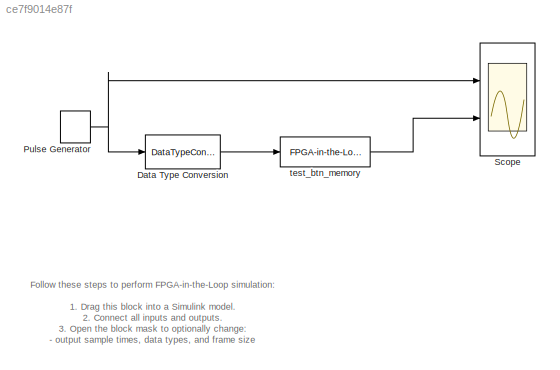
MODEL slx_ce7f9014e87f
KIND model
CONFIG AbsTol = auto
CONFIG EnableMultiTasking = off
CONFIG FixedStep = auto
CONFIG MaxStep = auto
CONFIG MinStep = auto
CONFIG RelTol = 1e-3
CONFIG SampleTimeConstraint = Unconstrained
CONFIG Solver = FixedStepAuto
CONFIG SolverName = FixedStepAuto
CONFIG StartTime = 0.0
CONFIG StopTime = 16
BLOCK [DataTypeConversion] Data Type Conversion
  OutDataTypeStr = boolean
  RndMeth = Floor
  SaturateOnIntegerOverflow = off
BLOCK [DiscretePulseGenerator] Pulse Generator
  Period = 4
  Ports = [0, 1]
  PulseType = Time based
  PulseWidth = 50
BLOCK [Scope] Scope
  NumInputPorts = 2
  Ports = [2]
  ScopeSpecificationString = Simulink.scopes.TimeScopeBlockCfg('CurrentConfiguration', extmgr.ConfigurationSet(extmgr.Configuration('Core','General UI',true),extmgr.Configuration('Core','Source UI',true),extmgr.Configuration('Sources','WiredSimulink',true,'DataLoggingSaveFormat','Array','DataLoggingLimitDataPoints',true,'DataLoggingDecimation','1'),extmgr.Configuration('Visuals','Time Domain',true,'SerializedDisplays',{struct...<+2336ch>
BLOCK [Reference] test_btn_memory  REF=fillib/FPGA-in-the-Loop (FIL)
  Ports = [1, 1]
  SourceBlock = fillib/FPGA-in-the-Loop (FIL)
  SourceType = FPGA-in-the-Loop (FIL)
  UserDataPersistent = on
ANNOTATION (root): Follow these steps to perform FPGA-in-the-Loop simulation: 1. Drag this block into a Simulink model. 2. Connect all inputs and outputs. 3. Open the block mask to optionally change: - output sample times, data types, and frame size - HDL overclocking factor Usually the mask defaults will work in your model without modification. 4. Attach the FPGA development board to your host computer (FPGA progra...<+260ch>
LINE Data Type Conversion:1 -> test_btn_memory:1
NET Pulse Generator:1 -> Data Type Conversion:1, Scope:1
LINE test_btn_memory:1 -> Scope:2
note: NET lines group one-source signal fan-out (src -> all destinations, sorted); 1:1 wires keep LINE
